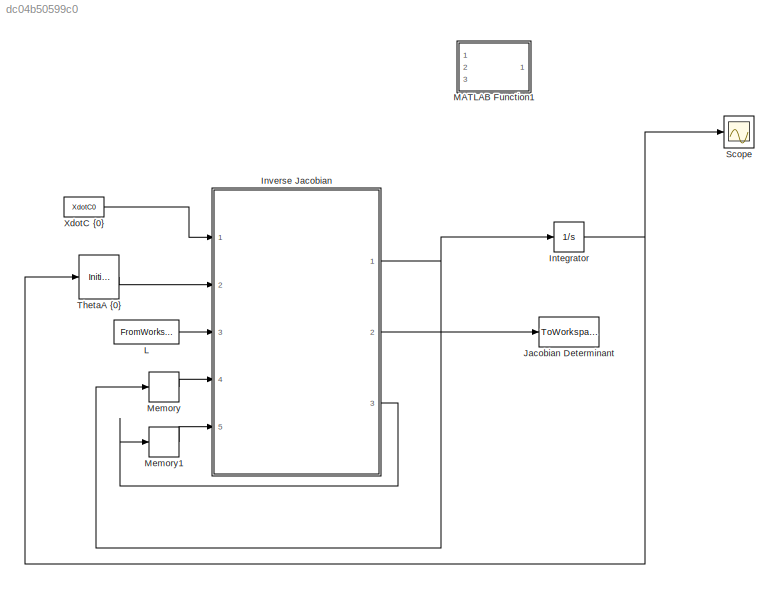
MODEL slx_dc04b50599c0
KIND model
CONFIG AbsTol = auto
CONFIG EnableMultiTasking = off
CONFIG FixedStep = 0.1
CONFIG MaxStep = auto
CONFIG MinStep = auto
CONFIG RelTol = 1e-3
CONFIG SampleTimeConstraint = Unconstrained
CONFIG SolverName = FixedStepAuto
CONFIG StartTime = 0.0
CONFIG StopTime = 5
BLOCK [Integrator] Integrator
  InitialCondition = ThetaA0
  LimitOutput = on
  LowerSaturationLimit = [-170;-170;-170]
  Ports = [1, 1]
  UpperSaturationLimit = [170; 170; 170]
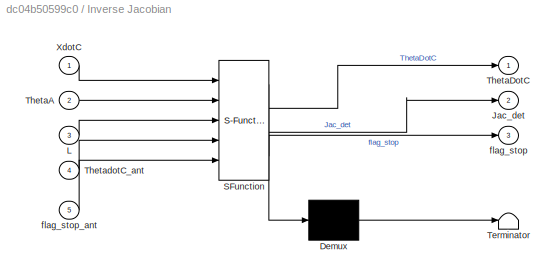
BLOCK [SubSystem] Inverse Jacobian
  ErrorFcn = Stateflow.Translate.translate
  PermitHierarchicalResolution = ExplicitOnly
  Ports = [5, 3]
  RequestExecContextInheritance = off
  SFBlockType = MATLAB Function
  TreatAsAtomicUnit = on
BLOCK [Demux] Inverse Jacobian/ Demux 
  Outputs = 1
  Ports = [1, 1]
BLOCK [S-Function] Inverse Jacobian/ SFunction 
  EnableBusSupport = on
  FunctionName = sf_sfun
  PortCounts = [5 4]
  Ports = [5, 4]
  SFcnIsStateOwnerBlock = off
  SFunctionDeploymentMode = off
  Tag = Stateflow S-Function 2
BLOCK [Terminator] Inverse Jacobian/ Terminator 
BLOCK [Outport] Inverse Jacobian/Jac_det
  Port = 2
BLOCK [Inport] Inverse Jacobian/L
  Port = 3
BLOCK [Inport] Inverse Jacobian/ThetaA
  Port = 2
BLOCK [Outport] Inverse Jacobian/ThetaDotC
BLOCK [Inport] Inverse Jacobian/ThetadotC_ant
  Port = 4
BLOCK [Inport] Inverse Jacobian/XdotC
BLOCK [Outport] Inverse Jacobian/flag_stop
  Port = 3
BLOCK [Inport] Inverse Jacobian/flag_stop_ant
  Port = 5
BLOCK [ToWorkspace] Jacobian Determinant
  MaxDataPoints = inf
  Ports = [1]
  SampleTime = -1
  SaveFormat = Timeseries
  VariableName = Det
BLOCK [FromWorkspace] L
  VariableName = L
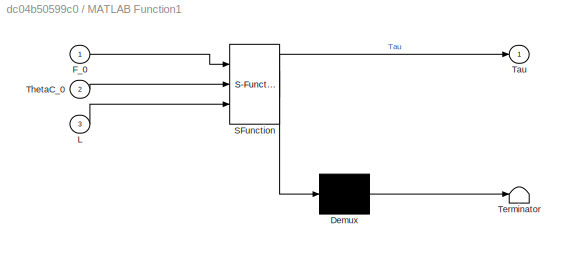
BLOCK [SubSystem] MATLAB Function1
  ErrorFcn = Stateflow.Translate.translate
  PermitHierarchicalResolution = ExplicitOnly
  Ports = [3, 1]
  RequestExecContextInheritance = off
  SFBlockType = MATLAB Function
  TreatAsAtomicUnit = on
BLOCK [Demux] MATLAB Function1/ Demux 
  Outputs = 1
  Ports = [1, 1]
BLOCK [S-Function] MATLAB Function1/ SFunction 
  EnableBusSupport = on
  FunctionName = sf_sfun
  PortCounts = [3 2]
  Ports = [3, 2]
  SFcnIsStateOwnerBlock = off
  SFunctionDeploymentMode = off
  Tag = Stateflow S-Function 1
BLOCK [Terminator] MATLAB Function1/ Terminator 
BLOCK [Inport] MATLAB Function1/F_0
BLOCK [Inport] MATLAB Function1/L
  Port = 3
BLOCK [Outport] MATLAB Function1/Tau
BLOCK [Inport] MATLAB Function1/ThetaC_0
  Port = 2
BLOCK [Memory] Memory
BLOCK [Memory] Memory1
BLOCK [Scope] Scope
  Floating = off
  NumInputPorts = 1
  Ports = [1]
  ScopeSpecificationString = Simulink.scopes.TimeScopeBlockCfg('CurrentConfiguration', extmgr.ConfigurationSet(extmgr.Configuration('Core','General UI',true),extmgr.Configuration('Core','Source UI',true),extmgr.Configuration('Sources','WiredSimulink',true),extmgr.Configuration('Visuals','Time Domain',true,'SerializedDisplays',{struct('MinYLimReal','6.54612','MaxYLimReal','32.71053','YLabelReal','','MinYLimMag','6.54612','MaxY...<+1364ch>
BLOCK [InitialCondition] ThetaA {0}
  Value = ThetaA0
BLOCK [Constant] XdotC {0}
  Value = XdotC0
NET Integrator:1 -> Scope:1, ThetaA {0}:1
NET Inverse Jacobian:1 -> Integrator:1, Memory:1
LINE Inverse Jacobian:2 -> Jacobian Determinant:1
LINE Inverse Jacobian:3 -> Memory1:1
LINE L:1 -> Inverse Jacobian:3
LINE Memory1:1 -> Inverse Jacobian:5
LINE Memory:1 -> Inverse Jacobian:4
LINE ThetaA {0}:1 -> Inverse Jacobian:2
LINE XdotC {0}:1 -> Inverse Jacobian:1
note: NET lines group one-source signal fan-out (src -> all destinations, sorted); 1:1 wires keep LINE
CHART MATLAB Function1 states=1 transitions=1
  STATE_LABEL 'eML_blk_kernel()'
  STATE_LABEL 'SCRIPT:\nfunction Tau = fcn(F_0,ThetaC_0,L)\n    Tau = 0\n'
CHART Inverse Jacobian states=1 transitions=1
  STATE_LABEL 'eML_blk_kernel()'
  STATE_LABEL 'SCRIPT:\nfunction [ThetaDotC,Jac_det,flag_stop]= fcn(XdotC,ThetaA,L,ThetadotC_ant,flag_stop_ant)\n    J0 = jacobian(ThetaA,L);\n    J0inv = inv(J0);\n    ThetaDotC = J0inv*XdotC\n    Jac_det = det(J0inv);\n    flag_stop = 0\n'
CHART  states=0 transitions=0
CHART  states=0 transitions=0
